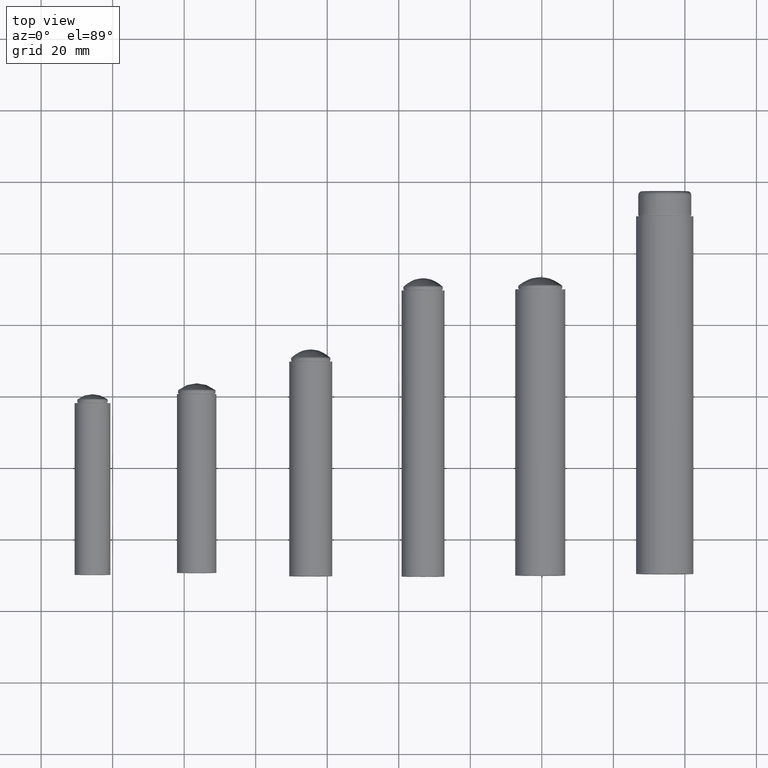
[diagram: clean part render]
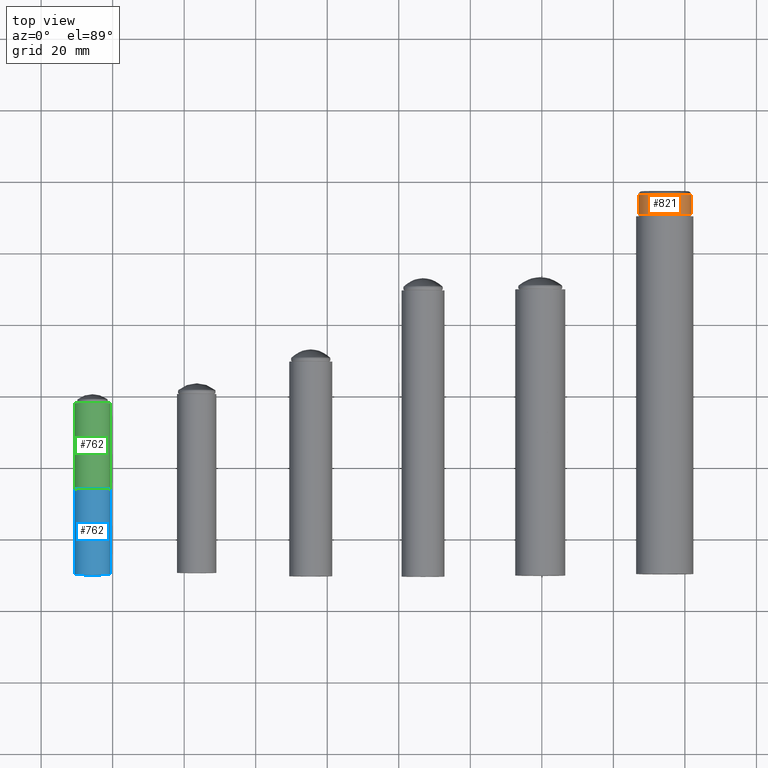
[diagram: same view with three faces highlighted in distinct colors, each labeled with its STEP entity id]
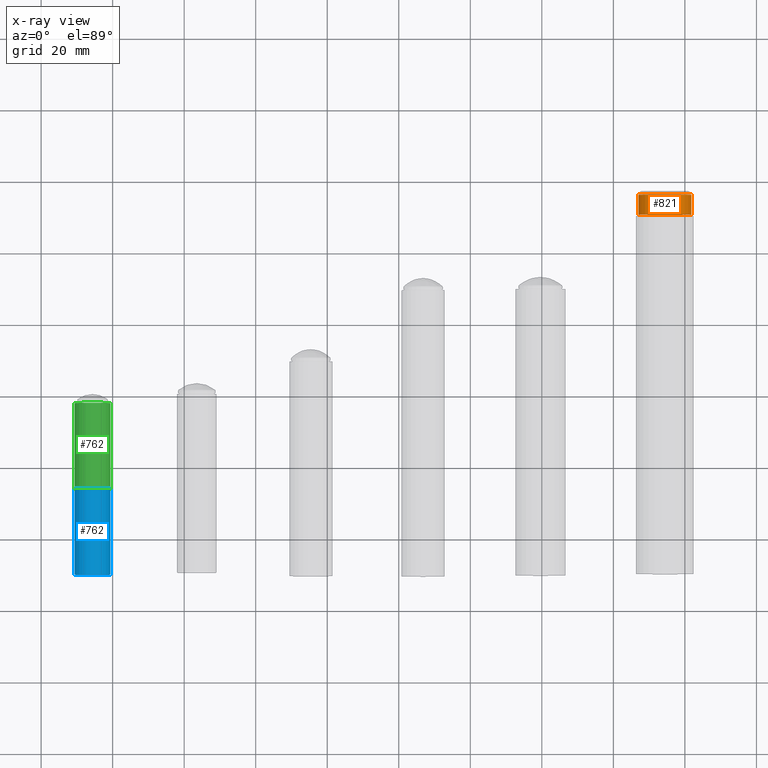
[diagram: x-ray of the same camera — body ghosted, the three highlighted faces saturated]
A machine part, top view with three faces highlighted in distinct colors.
The next image is the same camera in x-ray (body ghosted, the three faces saturated) — at least one of them is partly hidden behind the body in this view.
Their STEP definitions:

[orange] entity #821 — the highlighted cylindrical surface (bore or boss wall) has radius 7.4 mm, axis along (0, 1, 0).
#247=FACE_BOUND('',#428,.T.);
#311=FACE_OUTER_BOUND('',#427,.T.);
#427=EDGE_LOOP('',(#727));
#428=EDGE_LOOP('',(#728));
#491=CIRCLE('',#985,7.4);
#493=CIRCLE('',#988,7.4);
#551=VERTEX_POINT('',#1546);
#553=VERTEX_POINT('',#1551);
#611=EDGE_CURVE('',#551,#551,#491,.T.);
#613=EDGE_CURVE('',#553,#553,#493,.T.);
#727=ORIENTED_EDGE('',*,*,#613,.F.);
#728=ORIENTED_EDGE('',*,*,#611,.F.);
#759=CYLINDRICAL_SURFACE('',#987,7.4);
#821=ADVANCED_FACE('',(#311,#247),#759,.T.);
#985=AXIS2_PLACEMENT_3D('',#1547,#1300,#1301);
#987=AXIS2_PLACEMENT_3D('',#1550,#1304,#1305);
#988=AXIS2_PLACEMENT_3D('',#1552,#1306,#1307);
#1300=DIRECTION('center_axis',(-3.65418802971388E-16,1.,0.));
#1301=DIRECTION('ref_axis',(1.,3.5632157884929E-16,1.22464679914735E-16));
#1304=DIRECTION('center_axis',(-3.65418802971388E-16,1.,0.));
#1305=DIRECTION('ref_axis',(-1.,1.03383502248387E-14,0.));
#1306=DIRECTION('center_axis',(3.65418802971388E-16,-1.,0.));
#1307=DIRECTION('ref_axis',(1.,3.65698462503219E-16,1.22464679914735E-16));
#1546=CARTESIAN_POINT('',(-7.4,6.,0.));
#1547=CARTESIAN_POINT('Origin',(-2.19251281782832E-15,6.,0.));
#1550=CARTESIAN_POINT('Origin',(-1.82709401485692E-16,0.500000000000003,
0.));
#1551=CARTESIAN_POINT('',(-7.4,0.499999999999998,-1.81247726273808E-15));
#1552=CARTESIAN_POINT('Origin',(-1.82709401485691E-16,0.5,0.));

[blue] entity #762 — the highlighted cylindrical surface (bore or boss wall) has radius 5 mm, axis along (0, 1, 0).
#198=FACE_BOUND('',#320,.T.);
#252=FACE_OUTER_BOUND('',#319,.T.);
#319=EDGE_LOOP('',(#619));
#320=EDGE_LOOP('',(#620));
#439=CIRCLE('',#844,5.);
#440=CIRCLE('',#845,5.);
#499=VERTEX_POINT('',#1353);
#500=VERTEX_POINT('',#1355);
#559=EDGE_CURVE('',#499,#499,#439,.T.);
#560=EDGE_CURVE('',#500,#500,#440,.T.);
#619=ORIENTED_EDGE('',*,*,#559,.F.);
#620=ORIENTED_EDGE('',*,*,#560,.F.);
#738=CYLINDRICAL_SURFACE('',#843,5.);
#762=ADVANCED_FACE('',(#252,#198),#738,.T.);
#843=AXIS2_PLACEMENT_3D('',#1352,#1016,#1017);
#844=AXIS2_PLACEMENT_3D('',#1354,#1018,#1019);
#845=AXIS2_PLACEMENT_3D('',#1356,#1020,#1021);
#1016=DIRECTION('center_axis',(0.,0.,1.));
#1017=DIRECTION('ref_axis',(-1.,0.,0.));
#1018=DIRECTION('center_axis',(0.,0.,1.));
#1019=DIRECTION('ref_axis',(-1.,0.,0.));
#1020=DIRECTION('center_axis',(0.,0.,-1.));
#1021=DIRECTION('ref_axis',(-1.,0.,0.));
#1352=CARTESIAN_POINT('Origin',(0.,0.,0.));
#1353=CARTESIAN_POINT('',(5.,6.12323399573677E-16,24.));
#1354=CARTESIAN_POINT('Origin',(0.,0.,24.));
#1355=CARTESIAN_POINT('',(5.,6.12323399573677E-16,0.));
#1356=CARTESIAN_POINT('Origin',(0.,0.,0.));

[green] entity #762 — the highlighted cylindrical surface (bore or boss wall) has radius 5 mm, axis along (0, 1, 0).
#198=FACE_BOUND('',#320,.T.);
#252=FACE_OUTER_BOUND('',#319,.T.);
#319=EDGE_LOOP('',(#619));
#320=EDGE_LOOP('',(#620));
#439=CIRCLE('',#844,5.);
#440=CIRCLE('',#845,5.);
#499=VERTEX_POINT('',#1353);
#500=VERTEX_POINT('',#1355);
#559=EDGE_CURVE('',#499,#499,#439,.T.);
#560=EDGE_CURVE('',#500,#500,#440,.T.);
#619=ORIENTED_EDGE('',*,*,#559,.F.);
#620=ORIENTED_EDGE('',*,*,#560,.F.);
#738=CYLINDRICAL_SURFACE('',#843,5.);
#762=ADVANCED_FACE('',(#252,#198),#738,.T.);
#843=AXIS2_PLACEMENT_3D('',#1352,#1016,#1017);
#844=AXIS2_PLACEMENT_3D('',#1354,#1018,#1019);
#845=AXIS2_PLACEMENT_3D('',#1356,#1020,#1021);
#1016=DIRECTION('center_axis',(0.,0.,1.));
#1017=DIRECTION('ref_axis',(-1.,0.,0.));
#1018=DIRECTION('center_axis',(0.,0.,1.));
#1019=DIRECTION('ref_axis',(-1.,0.,0.));
#1020=DIRECTION('center_axis',(0.,0.,-1.));
#1021=DIRECTION('ref_axis',(-1.,0.,0.));
#1352=CARTESIAN_POINT('Origin',(0.,0.,0.));
#1353=CARTESIAN_POINT('',(5.,6.12323399573677E-16,24.));
#1354=CARTESIAN_POINT('Origin',(0.,0.,24.));
#1355=CARTESIAN_POINT('',(5.,6.12323399573677E-16,0.));
#1356=CARTESIAN_POINT('Origin',(0.,0.,0.));